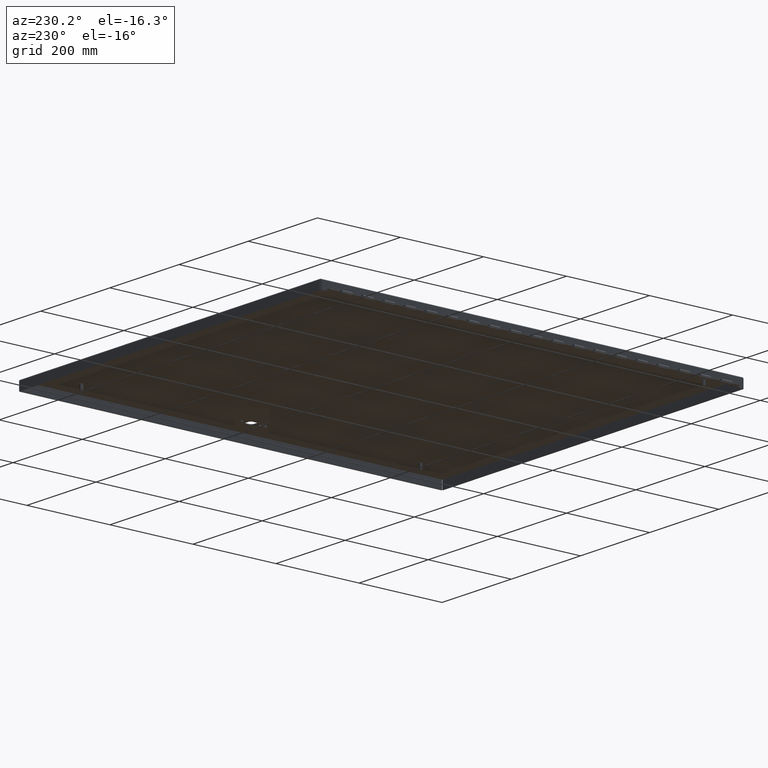
[diagram: clean part render]
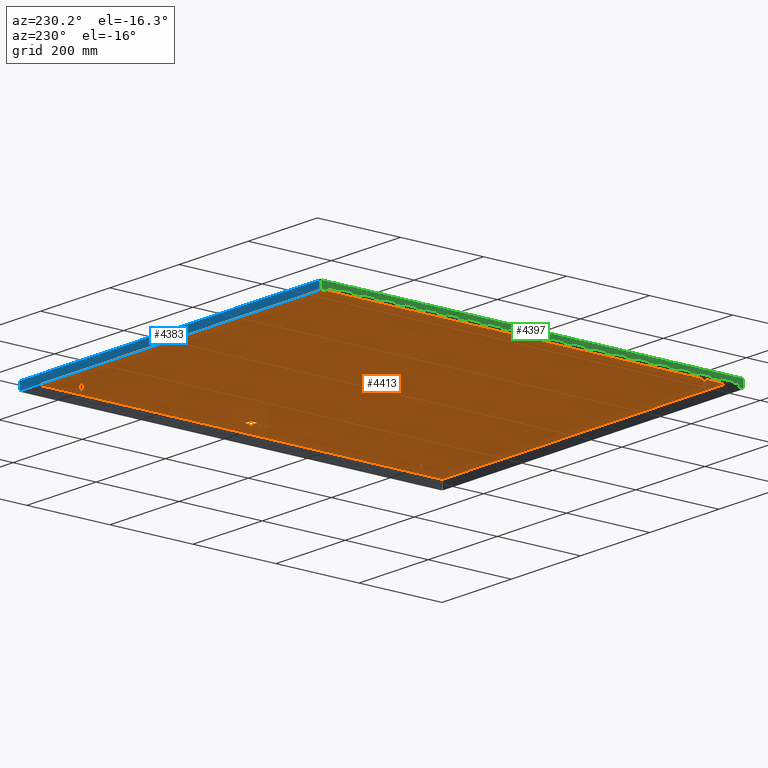
[diagram: same view with three faces highlighted in distinct colors, each labeled with its STEP entity id]
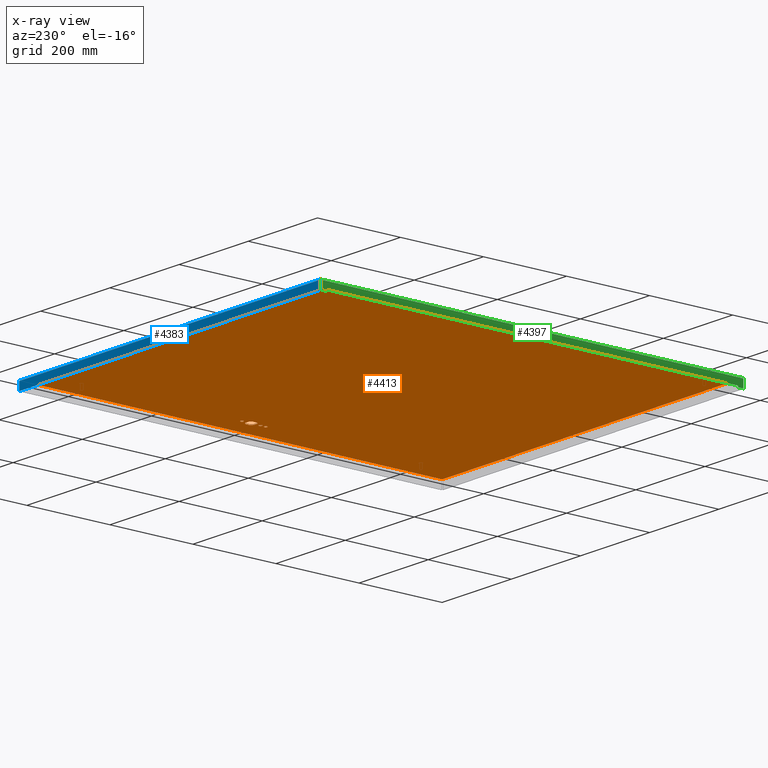
[diagram: x-ray of the same camera — body ghosted, the three highlighted faces saturated]
A machine part, auxiliary view with three faces highlighted in distinct colors.
The next image is the same camera in x-ray (body ghosted, the three faces saturated) — at least one of them is partly hidden behind the body in this view.
Their STEP definitions:

[orange] entity #4413 — the highlighted planar face has unit normal (-0, 0, -1).
#309=FACE_BOUND('',#823,.T.);
#310=FACE_BOUND('',#824,.T.);
#311=FACE_BOUND('',#825,.T.);
#312=FACE_BOUND('',#826,.T.);
#424=PLANE('',#4727);
#593=FACE_OUTER_BOUND('',#822,.T.);
#822=EDGE_LOOP('',(#3358,#3359,#3360,#3361));
#823=EDGE_LOOP('',(#3362,#3363,#3364,#3365,#3366,#3367,#3368,#3369));
#824=EDGE_LOOP('',(#3370));
#825=EDGE_LOOP('',(#3371));
#826=EDGE_LOOP('',(#3372));
#999=LINE('',#6272,#1455);
#1003=LINE('',#6284,#1459);
#1007=LINE('',#6296,#1463);
#1011=LINE('',#6307,#1467);
#1034=LINE('',#6380,#1490);
#1041=LINE('',#6515,#1497);
#1052=LINE('',#6627,#1508);
#1083=LINE('',#6893,#1539);
#1455=VECTOR('',#5082,0.393700787401575);
#1459=VECTOR('',#5094,0.393700787401575);
#1463=VECTOR('',#5106,0.393700787401575);
#1467=VECTOR('',#5118,0.393700787401575);
#1490=VECTOR('',#5171,0.393700787401575);
#1497=VECTOR('',#5182,0.393700787401575);
#1508=VECTOR('',#5203,0.393700787401575);
#1539=VECTOR('',#5266,0.393700787401575);
#1921=CIRCLE('',#4671,0.453);
#1923=CIRCLE('',#4675,0.453);
#1925=CIRCLE('',#4679,0.453);
#1927=CIRCLE('',#4683,0.453);
#1930=CIRCLE('',#4688,0.1405);
#1932=CIRCLE('',#4691,0.1405);
#1934=CIRCLE('',#4694,0.1405);
#2066=VERTEX_POINT('',#6262);
#2067=VERTEX_POINT('',#6263);
#2070=VERTEX_POINT('',#6271);
#2072=VERTEX_POINT('',#6277);
#2074=VERTEX_POINT('',#6283);
#2076=VERTEX_POINT('',#6289);
#2078=VERTEX_POINT('',#6295);
#2080=VERTEX_POINT('',#6301);
#2083=VERTEX_POINT('',#6312);
#2085=VERTEX_POINT('',#6318);
#2087=VERTEX_POINT('',#6324);
#2101=VERTEX_POINT('',#6363);
#2104=VERTEX_POINT('',#6372);
#2114=VERTEX_POINT('',#6514);
#2125=VERTEX_POINT('',#6626);
#2479=EDGE_CURVE('',#2066,#2067,#1921,.T.);
#2483=EDGE_CURVE('',#2067,#2070,#999,.T.);
#2486=EDGE_CURVE('',#2070,#2072,#1923,.T.);
#2489=EDGE_CURVE('',#2072,#2074,#1003,.T.);
#2492=EDGE_CURVE('',#2074,#2076,#1925,.T.);
#2495=EDGE_CURVE('',#2076,#2078,#1007,.T.);
#2498=EDGE_CURVE('',#2078,#2080,#1927,.T.);
#2501=EDGE_CURVE('',#2080,#2066,#1011,.T.);
#2505=EDGE_CURVE('',#2083,#2083,#1930,.T.);
#2508=EDGE_CURVE('',#2085,#2085,#1932,.T.);
#2511=EDGE_CURVE('',#2087,#2087,#1934,.T.);
#2532=EDGE_CURVE('',#2101,#2104,#1034,.T.);
#2547=EDGE_CURVE('',#2114,#2101,#1041,.T.);
#2565=EDGE_CURVE('',#2125,#2114,#1052,.T.);
#2605=EDGE_CURVE('',#2104,#2125,#1083,.T.);
#3358=ORIENTED_EDGE('',*,*,#2547,.T.);
#3359=ORIENTED_EDGE('',*,*,#2532,.T.);
#3360=ORIENTED_EDGE('',*,*,#2605,.T.);
#3361=ORIENTED_EDGE('',*,*,#2565,.T.);
#3362=ORIENTED_EDGE('',*,*,#2479,.T.);
#3363=ORIENTED_EDGE('',*,*,#2483,.T.);
#3364=ORIENTED_EDGE('',*,*,#2486,.T.);
#3365=ORIENTED_EDGE('',*,*,#2489,.T.);
#3366=ORIENTED_EDGE('',*,*,#2492,.T.);
#3367=ORIENTED_EDGE('',*,*,#2495,.T.);
#3368=ORIENTED_EDGE('',*,*,#2498,.T.);
#3369=ORIENTED_EDGE('',*,*,#2501,.T.);
#3370=ORIENTED_EDGE('',*,*,#2505,.T.);
#3371=ORIENTED_EDGE('',*,*,#2508,.T.);
#3372=ORIENTED_EDGE('',*,*,#2511,.T.);
#4413=ADVANCED_FACE('',(#593,#309,#310,#311,#312),#424,.T.);
#4671=AXIS2_PLACEMENT_3D('',#6264,#5074,#5075);
#4675=AXIS2_PLACEMENT_3D('',#6278,#5087,#5088);
#4679=AXIS2_PLACEMENT_3D('',#6290,#5099,#5100);
#4683=AXIS2_PLACEMENT_3D('',#6302,#5111,#5112);
#4688=AXIS2_PLACEMENT_3D('',#6314,#5125,#5126);
#4691=AXIS2_PLACEMENT_3D('',#6320,#5132,#5133);
#4694=AXIS2_PLACEMENT_3D('',#6326,#5139,#5140);
#4727=AXIS2_PLACEMENT_3D('',#6922,#5277,#5278);
#5074=DIRECTION('center_axis',(0.,0.,-1.));
#5075=DIRECTION('ref_axis',(-0.469368833158312,-0.883002207505511,0.));
#5082=DIRECTION('',(0.,-1.,0.));
#5087=DIRECTION('center_axis',(0.,0.,-1.));
#5088=DIRECTION('ref_axis',(-0.883002207505523,0.469368833158287,0.));
#5094=DIRECTION('',(-1.,-4.11144096252608E-16,0.));
#5099=DIRECTION('center_axis',(0.,0.,-1.));
#5100=DIRECTION('ref_axis',(0.469368833158287,0.883002207505524,0.));
#5106=DIRECTION('',(0.,1.,0.));
#5111=DIRECTION('center_axis',(0.,0.,-1.));
#5112=DIRECTION('ref_axis',(0.883002207505515,-0.469368833158303,0.));
#5118=DIRECTION('',(1.,0.,0.));
#5125=DIRECTION('center_axis',(0.,0.,-1.));
#5126=DIRECTION('ref_axis',(1.,0.,0.));
#5132=DIRECTION('center_axis',(0.,0.,-1.));
#5133=DIRECTION('ref_axis',(1.,0.,0.));
#5139=DIRECTION('center_axis',(0.,0.,-1.));
#5140=DIRECTION('ref_axis',(1.,0.,0.));
#5171=DIRECTION('',(1.,8.16292020079576E-17,0.));
#5182=DIRECTION('',(1.39951089151873E-16,-1.,0.));
#5203=DIRECTION('',(-1.,0.,0.));
#5266=DIRECTION('',(0.,1.,0.));
#5277=DIRECTION('center_axis',(0.,0.,1.));
#5278=DIRECTION('ref_axis',(1.,0.,0.));
#6262=CARTESIAN_POINT('',(15.0251240814207,0.400000000000005,0.074));
#6263=CARTESIAN_POINT('',(15.2125,0.212624081420713,0.074));
#6264=CARTESIAN_POINT('Origin',(14.8125,8.39223703653662E-15,0.074));
#6271=CARTESIAN_POINT('',(15.2125,-0.212624081420696,0.074));
#6272=CARTESIAN_POINT('',(15.2125,0.106312040710358,0.074));
#6277=CARTESIAN_POINT('',(15.0251240814207,-0.399999999999994,0.074));
#6278=CARTESIAN_POINT('Origin',(14.8125,8.39223703653662E-15,0.074));
#6283=CARTESIAN_POINT('',(14.5998759185793,-0.399999999999994,0.074));
#6284=CARTESIAN_POINT('',(7.51256204071035,-0.399999999999997,0.074));
#6289=CARTESIAN_POINT('',(14.4125,-0.212624081420704,0.074));
#6290=CARTESIAN_POINT('Origin',(14.8125,8.39223703653662E-15,0.074));
#6295=CARTESIAN_POINT('',(14.4125,0.21262408142072,0.074));
#6296=CARTESIAN_POINT('',(14.4125,-0.106312040710351,0.074));
#6301=CARTESIAN_POINT('',(14.5998759185793,0.400000000000005,0.074));
#6302=CARTESIAN_POINT('Origin',(14.8125,8.39223703653662E-15,0.074));
#6307=CARTESIAN_POINT('',(7.29993795928964,0.400000000000005,0.074));
#6312=CARTESIAN_POINT('',(14.672,0.886000000000008,0.074));
#6314=CARTESIAN_POINT('Origin',(14.8125,0.886000000000008,0.074));
#6318=CARTESIAN_POINT('',(14.672,1.37800000000001,0.074));
#6320=CARTESIAN_POINT('Origin',(14.8125,1.37800000000001,0.074));
#6324=CARTESIAN_POINT('',(14.672,-0.884999999999992,0.074));
#6326=CARTESIAN_POINT('Origin',(14.8125,-0.884999999999992,0.074));
#6363=CARTESIAN_POINT('',(-17.08225,-19.9885,0.074));
#6372=CARTESIAN_POINT('',(17.08225,-19.9885,0.074));
#6380=CARTESIAN_POINT('',(8.541125,-19.9885,0.074));
#6514=CARTESIAN_POINT('',(-17.08225,19.9885,0.074));
#6515=CARTESIAN_POINT('',(-17.08225,-9.99425,0.074));
#6626=CARTESIAN_POINT('',(17.08225,19.9885,0.074));
#6627=CARTESIAN_POINT('',(-8.59375,19.9885,0.074));
#6893=CARTESIAN_POINT('',(17.08225,9.99425,0.074));
#6922=CARTESIAN_POINT('Origin',(-2.79741234551221E-15,2.35817831838976E-15,
0.074));

[blue] entity #4383 — the highlighted planar face has unit normal (-0, -1, -0).
#407=PLANE('',#4705);
#563=FACE_OUTER_BOUND('',#792,.T.);
#792=EDGE_LOOP('',(#3232,#3233,#3234,#3235));
#1038=LINE('',#6490,#1494);
#1044=LINE('',#6592,#1500);
#1047=LINE('',#6598,#1503);
#1048=LINE('',#6599,#1504);
#1494=VECTOR('',#5177,0.393700787401575);
#1500=VECTOR('',#5189,0.393700787401575);
#1503=VECTOR('',#5194,0.393700787401575);
#1504=VECTOR('',#5195,0.393700787401575);
#2110=VERTEX_POINT('',#6471);
#2113=VERTEX_POINT('',#6482);
#2117=VERTEX_POINT('',#6591);
#2119=VERTEX_POINT('',#6597);
#2544=EDGE_CURVE('',#2110,#2113,#1038,.T.);
#2554=EDGE_CURVE('',#2110,#2117,#1044,.T.);
#2557=EDGE_CURVE('',#2119,#2113,#1047,.T.);
#2558=EDGE_CURVE('',#2117,#2119,#1048,.T.);
#3232=ORIENTED_EDGE('',*,*,#2554,.F.);
#3233=ORIENTED_EDGE('',*,*,#2544,.T.);
#3234=ORIENTED_EDGE('',*,*,#2557,.F.);
#3235=ORIENTED_EDGE('',*,*,#2558,.F.);
#4383=ADVANCED_FACE('',(#563),#407,.F.);
#4705=AXIS2_PLACEMENT_3D('',#6596,#5192,#5193);
#5177=DIRECTION('',(1.,4.01973058230914E-17,-2.21983249683134E-31));
#5189=DIRECTION('',(-3.63418297565728E-15,-3.82603256489782E-15,1.));
#5192=DIRECTION('center_axis',(-4.01973058230914E-17,1.,3.82603256489782E-15));
#5193=DIRECTION('ref_axis',(1.,4.01973058230911E-17,8.13792682330821E-17));
#5194=DIRECTION('',(-4.43734259186819E-31,5.39030285815812E-15,-1.));
#5195=DIRECTION('',(1.,8.13792682330823E-17,-2.0184304546227E-19));
#6471=CARTESIAN_POINT('',(-17.102451456544,-20.09375,0.105250000000013));
#6482=CARTESIAN_POINT('',(17.102451456544,-20.09375,0.105250000000001));
#6490=CARTESIAN_POINT('',(-0.0496777232855196,-20.09375,0.105250000000001));
#6591=CARTESIAN_POINT('',(-17.102451456544,-20.09375,0.874999999999999));
#6592=CARTESIAN_POINT('',(-17.102451456544,-20.09375,0.47354610839131));
#6596=CARTESIAN_POINT('Origin',(-0.0467304465710415,-20.09375,0.456967216782682));
#6597=CARTESIAN_POINT('',(17.102451456544,-20.09375,0.874999999999999));
#6598=CARTESIAN_POINT('',(17.102451456544,-20.09375,0.105249999999998));
#6599=CARTESIAN_POINT('',(-17.1875,-20.09375,0.874999999999999));

[green] entity #4397 — the highlighted planar face has unit normal (1, -0, -0).
#414=PLANE('',#4715);
#577=FACE_OUTER_BOUND('',#806,.T.);
#806=EDGE_LOOP('',(#3289,#3290,#3291,#3292,#3293,#3294,#3295,#3296));
#1018=LINE('',#6334,#1474);
#1021=LINE('',#6340,#1477);
#1025=LINE('',#6347,#1481);
#1031=LINE('',#6360,#1487);
#1043=LINE('',#6562,#1499);
#1056=LINE('',#6738,#1512);
#1061=LINE('',#6748,#1517);
#1067=LINE('',#6784,#1523);
#1474=VECTOR('',#5145,0.393700787401575);
#1477=VECTOR('',#5150,0.393700787401575);
#1481=VECTOR('',#5156,0.393700787401575);
#1487=VECTOR('',#5166,0.393700787401575);
#1499=VECTOR('',#5186,0.393700787401575);
#1512=VECTOR('',#5209,0.393700787401575);
#1517=VECTOR('',#5220,0.393700787401575);
#1523=VECTOR('',#5232,0.393700787401575);
#2090=VERTEX_POINT('',#6331);
#2091=VERTEX_POINT('',#6333);
#2093=VERTEX_POINT('',#6339);
#2095=VERTEX_POINT('',#6345);
#2100=VERTEX_POINT('',#6359);
#2106=VERTEX_POINT('',#6417);
#2128=VERTEX_POINT('',#6736);
#2130=VERTEX_POINT('',#6746);
#2514=EDGE_CURVE('',#2091,#2090,#1018,.T.);
#2517=EDGE_CURVE('',#2093,#2091,#1021,.T.);
#2521=EDGE_CURVE('',#2090,#2095,#1025,.T.);
#2527=EDGE_CURVE('',#2100,#2093,#1031,.T.);
#2552=EDGE_CURVE('',#2106,#2100,#1043,.T.);
#2574=EDGE_CURVE('',#2095,#2128,#1056,.T.);
#2579=EDGE_CURVE('',#2128,#2130,#1061,.T.);
#2586=EDGE_CURVE('',#2130,#2106,#1067,.T.);
#3289=ORIENTED_EDGE('',*,*,#2521,.T.);
#3290=ORIENTED_EDGE('',*,*,#2574,.T.);
#3291=ORIENTED_EDGE('',*,*,#2579,.T.);
#3292=ORIENTED_EDGE('',*,*,#2586,.T.);
#3293=ORIENTED_EDGE('',*,*,#2552,.T.);
#3294=ORIENTED_EDGE('',*,*,#2527,.T.);
#3295=ORIENTED_EDGE('',*,*,#2517,.T.);
#3296=ORIENTED_EDGE('',*,*,#2514,.T.);
#4397=ADVANCED_FACE('',(#577),#414,.F.);
#4715=AXIS2_PLACEMENT_3D('',#6786,#5234,#5235);
#5145=DIRECTION('',(-1.38061585946727E-16,1.,4.63590691905643E-16));
#5150=DIRECTION('',(4.01734716856494E-15,1.87517526417069E-15,-1.));
#5156=DIRECTION('',(-4.01734716856494E-15,-1.17582217779266E-15,1.));
#5166=DIRECTION('',(0.,1.,0.));
#5186=DIRECTION('',(-3.63418297565725E-15,-3.63418297565725E-15,1.));
#5209=DIRECTION('',(0.,1.,0.));
#5220=DIRECTION('',(7.26836595131457E-15,-3.63418297565728E-15,-1.));
#5232=DIRECTION('',(1.38061585946725E-16,-1.,-6.23359849341427E-33));
#5234=DIRECTION('center_axis',(1.,1.38061585946725E-16,4.01734716856494E-15));
#5235=DIRECTION('ref_axis',(4.01734716856494E-15,-1.39218032747108E-16,
-1.));
#6331=CARTESIAN_POINT('',(-17.1875,19.515625,0.749999999999997));
#6333=CARTESIAN_POINT('',(-17.1875,-19.515625,0.749999999999979));
#6334=CARTESIAN_POINT('',(-17.1875,9.7578125,0.749999999999992));
#6339=CARTESIAN_POINT('',(-17.1875,-19.515625,0.874999999999982));
#6340=CARTESIAN_POINT('',(-17.1875,-19.515625,0.603431693890031));
#6345=CARTESIAN_POINT('',(-17.1875,19.515625,0.874999999999996));
#6347=CARTESIAN_POINT('',(-17.1875,19.515625,0.665931693890069));
#6359=CARTESIAN_POINT('',(-17.1875,-20.008701456544,0.874999999999999));
#6360=CARTESIAN_POINT('',(-17.1875,-125.578211071266,0.874999999999999));
#6417=CARTESIAN_POINT('',(-17.1875,-20.008701456544,0.105249999999966));
#6562=CARTESIAN_POINT('',(-17.1875,-20.008701456544,0.105249999999989));
#6736=CARTESIAN_POINT('',(-17.1875,20.008701456544,0.875000000000003));
#6738=CARTESIAN_POINT('',(-17.1875,-125.578211071266,0.874999999999999));
#6746=CARTESIAN_POINT('',(-17.1875,20.008701456544,0.105250000000013));
#6748=CARTESIAN_POINT('',(-17.1875,20.008701456544,0.10525));
#6784=CARTESIAN_POINT('',(-17.1875,-2.45510083568086E-15,0.105250000000001));
#6786=CARTESIAN_POINT('Origin',(-17.1875,-2.09820936840662E-15,0.45686338778012));